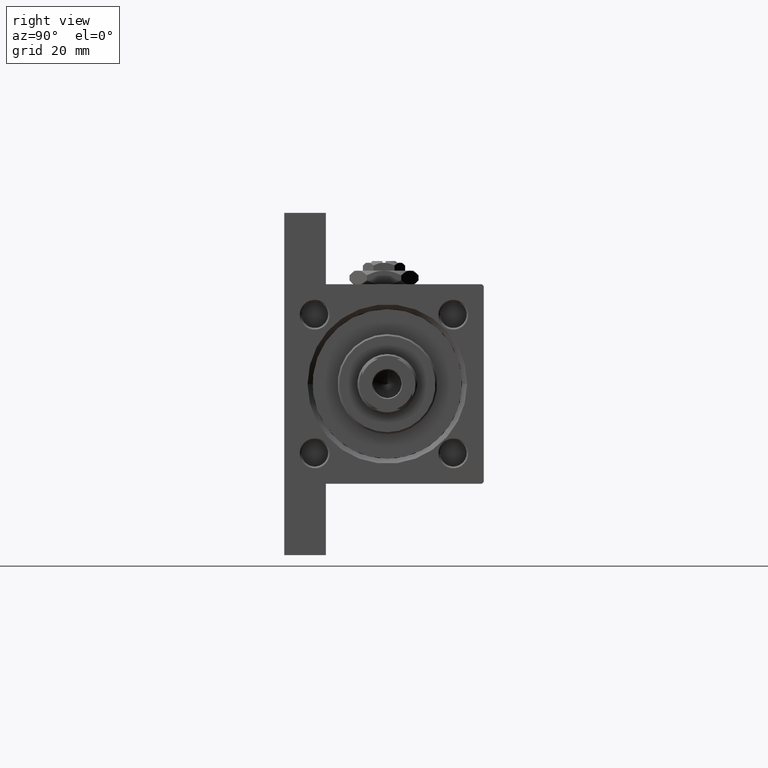
[diagram: clean part render]
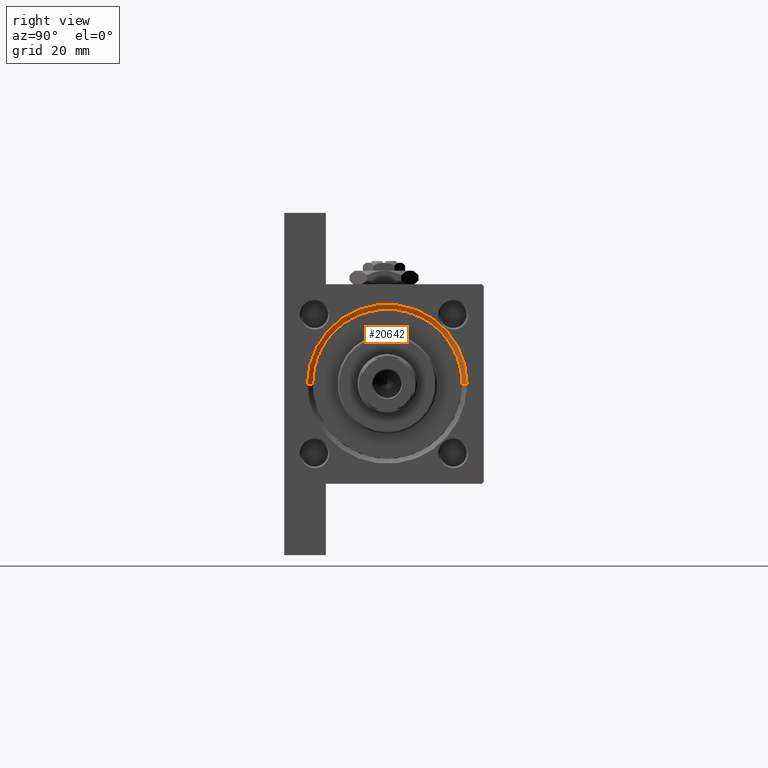
[diagram: same view with one face highlighted and labeled with its STEP entity id]
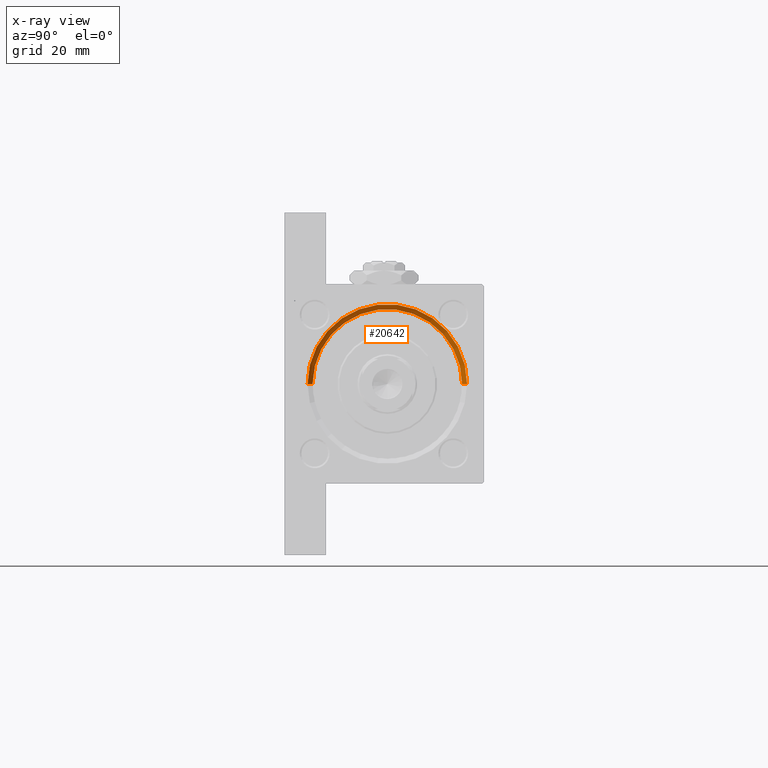
[diagram: x-ray of the same camera — body ghosted, the highlighted face saturated]
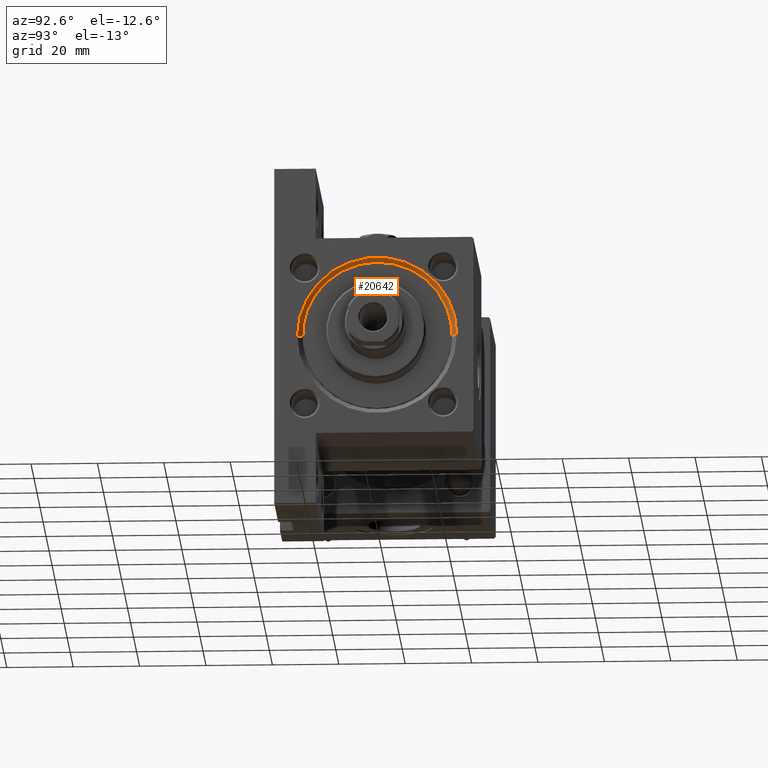
[diagram: same view with one face highlighted and labeled with its STEP entity id]
A machine part, right view. The second image highlights one B-rep face of the part: STEP entity #20642.
The next image is the same camera in x-ray: the body ghosted, the highlighted face saturated — about 0% of this face is hidden behind the body in this view.
A second angle (auxiliary view) of the same face is appended — the face is thin or edge-on in the first view.
In plain terms, the highlighted conical surface has half-angle 45 deg.
Its self-contained STEP definition (entity closure, byte-faithful):
#1649 = DIRECTION ( 'NONE',  ( 1.000000000000000000, 0.000000000000000000, 0.000000000000000000 ) ) ;
#2525 = CARTESIAN_POINT ( 'NONE',  ( 148.0000000000000000, 0.000000000000000000, 1.000000000000007772 ) ) ;
#3391 = VERTEX_POINT ( 'NONE', #30948 ) ;
#3434 = LINE ( 'NONE', #19071, #25739 ) ;
#3725 = CARTESIAN_POINT ( 'NONE',  ( 146.4999999999999432, 0.000000000000000000, -21.49999999999999645 ) ) ;
#5499 = FACE_OUTER_BOUND ( 'NONE', #46408, .T. ) ;
#6290 = CIRCLE ( 'NONE', #12802, 24.00000000000003908 ) ;
#8924 = CARTESIAN_POINT ( 'NONE',  ( 146.4999999999999432, 2.755455298081545172E-15, 23.50000000000001066 ) ) ;
#9600 = DIRECTION ( 'NONE',  ( 0.7071067811865524577, 8.659560562354874926E-17, 0.7071067811865426878 ) ) ;
#9850 = CARTESIAN_POINT ( 'NONE',  ( 146.4999999999999432, 2.755455298081545172E-15, 23.50000000000001066 ) ) ;
#11006 = CONICAL_SURFACE ( 'NONE', #18377, 22.50000000000000355, 0.7853981633974415066 ) ;
#12802 = AXIS2_PLACEMENT_3D ( 'NONE', #2525, #18156, #33818 ) ;
#14529 = CIRCLE ( 'NONE', #30105, 22.50000000000000355 ) ;
#16090 = VERTEX_POINT ( 'NONE', #3725 ) ;
#16128 = ORIENTED_EDGE ( 'NONE', *, *, #49698, .F. ) ;
#18156 = DIRECTION ( 'NONE',  ( -1.000000000000000000, 0.000000000000000000, -0.000000000000000000 ) ) ;
#18377 = AXIS2_PLACEMENT_3D ( 'NONE', #36800, #1649, #29097 ) ;
#19071 = CARTESIAN_POINT ( 'NONE',  ( 146.4999999999999432, 0.000000000000000000, -21.49999999999999645 ) ) ;
#19793 = EDGE_CURVE ( 'NONE', #16090, #3391, #3434, .T. ) ;
#20642 = ADVANCED_FACE ( 'NONE', ( #5499 ), #11006, .F. ) ;
#20929 = ORIENTED_EDGE ( 'NONE', *, *, #28898, .T. ) ;
#22104 = CARTESIAN_POINT ( 'NONE',  ( 148.0000000000000000, 2.939152317953652628E-15, 25.00000000000004619 ) ) ;
#22917 = EDGE_CURVE ( 'NONE', #3391, #23584, #6290, .T. ) ;
#23584 = VERTEX_POINT ( 'NONE', #22104 ) ;
#25739 = VECTOR ( 'NONE', #30880, 1000.000000000000000 ) ;
#26337 = VECTOR ( 'NONE', #9600, 1000.000000000000000 ) ;
#27832 = DIRECTION ( 'NONE',  ( 1.000000000000000000, 0.000000000000000000, 0.000000000000000000 ) ) ;
#28898 = EDGE_CURVE ( 'NONE', #36476, #23584, #41684, .T. ) ;
#29097 = DIRECTION ( 'NONE',  ( 0.000000000000000000, 0.000000000000000000, -1.000000000000000000 ) ) ;
#30105 = AXIS2_PLACEMENT_3D ( 'NONE', #31694, #27832, #43512 ) ;
#30880 = DIRECTION ( 'NONE',  ( 0.7071067811865524577, 0.000000000000000000, -0.7071067811865426878 ) ) ;
#30948 = CARTESIAN_POINT ( 'NONE',  ( 148.0000000000000000, 0.000000000000000000, -23.00000000000003197 ) ) ;
#31694 = CARTESIAN_POINT ( 'NONE',  ( 146.4999999999999432, 0.000000000000000000, 1.000000000000007772 ) ) ;
#32234 = ORIENTED_EDGE ( 'NONE', *, *, #22917, .F. ) ;
#32306 = ORIENTED_EDGE ( 'NONE', *, *, #19793, .F. ) ;
#33818 = DIRECTION ( 'NONE',  ( 0.000000000000000000, 0.000000000000000000, 1.000000000000000000 ) ) ;
#36476 = VERTEX_POINT ( 'NONE', #8924 ) ;
#36800 = CARTESIAN_POINT ( 'NONE',  ( 146.4999999999999432, 0.000000000000000000, 1.000000000000007772 ) ) ;
#41684 = LINE ( 'NONE', #9850, #26337 ) ;
#43512 = DIRECTION ( 'NONE',  ( 0.000000000000000000, 0.000000000000000000, 1.000000000000000000 ) ) ;
#46408 = EDGE_LOOP ( 'NONE', ( #16128, #20929, #32234, #32306 ) ) ;
#49698 = EDGE_CURVE ( 'NONE', #36476, #16090, #14529, .T. ) ;